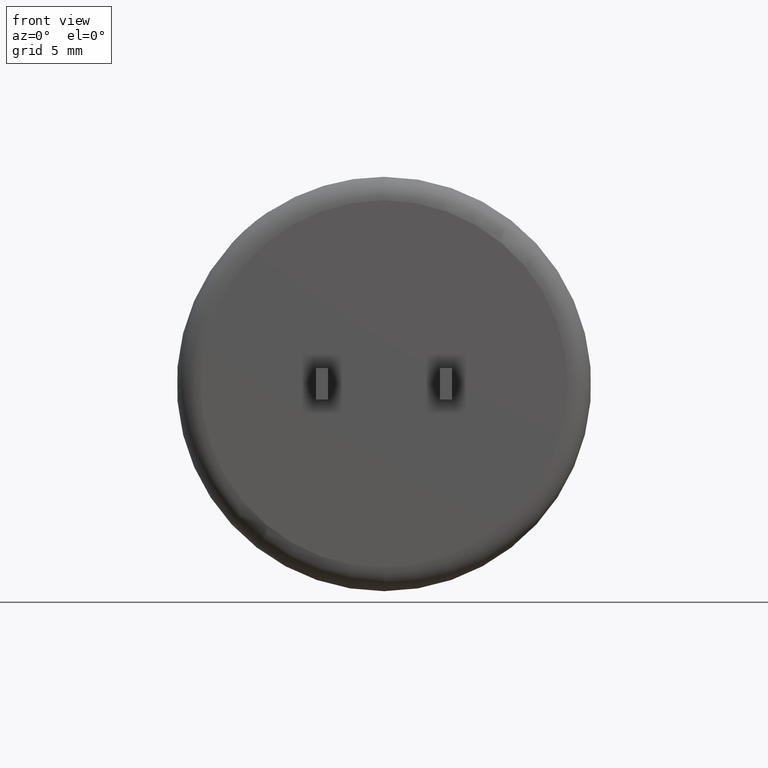
[diagram: clean part render]
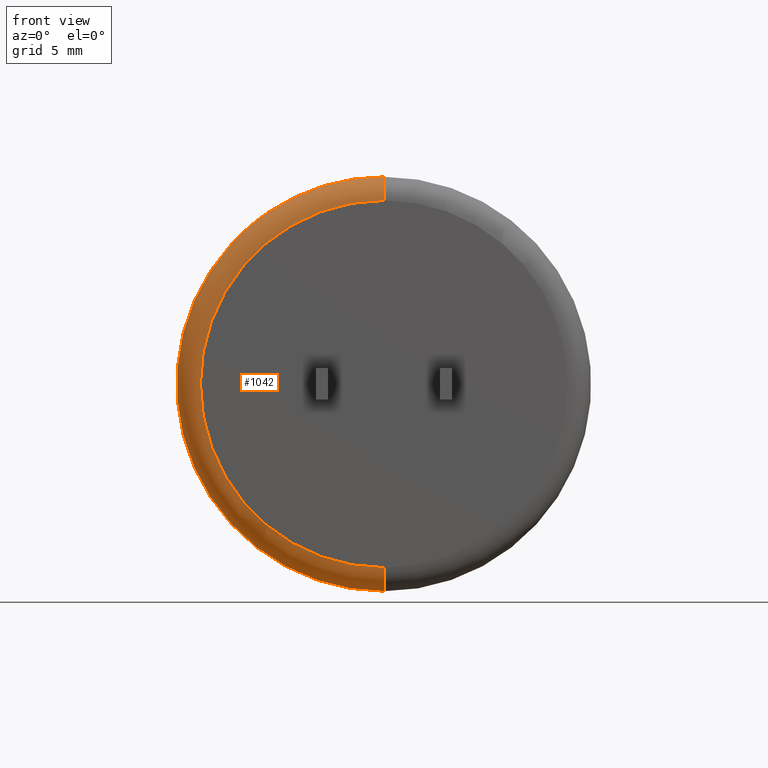
[diagram: same view with one face highlighted and labeled with its STEP entity id]
A machine part, front view. The second image highlights one B-rep face of the part: STEP entity #1042.
In plain terms, the highlighted toroidal blend (fillet) surface has major radius 7.5325 mm and minor (blend) radius 0.9675 mm.
Its self-contained STEP definition (entity closure, byte-faithful):
#48 = CARTESIAN_POINT ( 'NONE',  ( 0.0000000000000000000, 0.0000000000000000000, 0.0000000000000000000 ) ) ;
#112 = CARTESIAN_POINT ( 'NONE',  ( 9.224652014577440100E-016, 0.9674999999999995800, -7.532500000000000600 ) ) ;
#113 = ORIENTED_EDGE ( 'NONE', *, *, #2578, .F. ) ;
#175 = CARTESIAN_POINT ( 'NONE',  ( 0.0000000000000000000, 0.9674999999999995800, 0.0000000000000000000 ) ) ;
#184 = EDGE_CURVE ( 'NONE', #2201, #2674, #423, .T. ) ;
#210 = DIRECTION ( 'NONE',  ( 0.0000000000000000000, 0.0000000000000000000, 1.000000000000000000 ) ) ;
#244 = AXIS2_PLACEMENT_3D ( 'NONE', #2397, #1320, #916 ) ;
#355 = CARTESIAN_POINT ( 'NONE',  ( 0.0000000000000000000, 0.9674999999999995800, 0.0000000000000000000 ) ) ;
#409 = CARTESIAN_POINT ( 'NONE',  ( 0.0000000000000000000, 0.9674999999999995800, -8.500000000000000000 ) ) ;
#423 = CIRCLE ( 'NONE', #1631, 8.500000000000000000 ) ;
#441 = TOROIDAL_SURFACE ( 'NONE', #1013, 7.532500000000000600, 0.9675000000000000300 ) ;
#569 = ORIENTED_EDGE ( 'NONE', *, *, #2249, .T. ) ;
#590 = CIRCLE ( 'NONE', #244, 8.500000000000000000 ) ;
#634 = EDGE_CURVE ( 'NONE', #1253, #1154, #1752, .T. ) ;
#737 = EDGE_LOOP ( 'NONE', ( #113, #1840, #569, #2597, #2734, #2432 ) ) ;
#746 = EDGE_CURVE ( 'NONE', #2674, #1638, #590, .T. ) ;
#779 = VERTEX_POINT ( 'NONE', #2600 ) ;
#915 = CIRCLE ( 'NONE', #2141, 0.9674999999999995800 ) ;
#916 = DIRECTION ( 'NONE',  ( 0.0000000000000000000, 0.0000000000000000000, 1.000000000000000000 ) ) ;
#917 = CIRCLE ( 'NONE', #1662, 8.500000000000000000 ) ;
#1013 = AXIS2_PLACEMENT_3D ( 'NONE', #175, #1847, #1218 ) ;
#1035 = CIRCLE ( 'NONE', #1964, 0.9674999999999995800 ) ;
#1042 = ADVANCED_FACE ( 'NONE', ( #1704 ), #441, .T. ) ;
#1134 = DIRECTION ( 'NONE',  ( -0.0000000000000000000, -1.000000000000000000, -0.0000000000000000000 ) ) ;
#1154 = VERTEX_POINT ( 'NONE', #1915 ) ;
#1165 = DIRECTION ( 'NONE',  ( 0.0000000000000000000, 0.0000000000000000000, 1.000000000000000000 ) ) ;
#1218 = DIRECTION ( 'NONE',  ( 0.0000000000000000000, 0.0000000000000000000, 1.000000000000000000 ) ) ;
#1253 = VERTEX_POINT ( 'NONE', #1499 ) ;
#1320 = DIRECTION ( 'NONE',  ( 0.0000000000000000000, 1.000000000000000000, 0.0000000000000000000 ) ) ;
#1465 = DIRECTION ( 'NONE',  ( -1.000000000000000000, 0.0000000000000000000, 0.0000000000000000000 ) ) ;
#1499 = CARTESIAN_POINT ( 'NONE',  ( 0.0000000000000000000, 0.0000000000000000000, 7.532500000000000600 ) ) ;
#1584 = DIRECTION ( 'NONE',  ( 1.000000000000000000, -0.0000000000000000000, 1.224646799147353200E-016 ) ) ;
#1593 = DIRECTION ( 'NONE',  ( 1.224646799147353700E-016, 0.0000000000000000000, -1.000000000000000000 ) ) ;
#1631 = AXIS2_PLACEMENT_3D ( 'NONE', #2448, #1810, #1165 ) ;
#1638 = VERTEX_POINT ( 'NONE', #2064 ) ;
#1662 = AXIS2_PLACEMENT_3D ( 'NONE', #355, #2730, #2088 ) ;
#1704 = FACE_OUTER_BOUND ( 'NONE', #737, .T. ) ;
#1752 = CIRCLE ( 'NONE', #2351, 7.532500000000000600 ) ;
#1795 = DIRECTION ( 'NONE',  ( 0.0000000000000000000, 0.0000000000000000000, 1.000000000000000000 ) ) ;
#1810 = DIRECTION ( 'NONE',  ( 0.0000000000000000000, 1.000000000000000000, 0.0000000000000000000 ) ) ;
#1840 = ORIENTED_EDGE ( 'NONE', *, *, #634, .F. ) ;
#1847 = DIRECTION ( 'NONE',  ( 0.0000000000000000000, 1.000000000000000000, 0.0000000000000000000 ) ) ;
#1915 = CARTESIAN_POINT ( 'NONE',  ( 9.817074903664970800E-016, 0.0000000000000000000, -7.532500000000000600 ) ) ;
#1964 = AXIS2_PLACEMENT_3D ( 'NONE', #112, #1584, #1593 ) ;
#2064 = CARTESIAN_POINT ( 'NONE',  ( -4.743600123693313200, 0.9674999999999995800, 7.053244492182076700 ) ) ;
#2088 = DIRECTION ( 'NONE',  ( 0.0000000000000000000, 0.0000000000000000000, 1.000000000000000000 ) ) ;
#2141 = AXIS2_PLACEMENT_3D ( 'NONE', #2550, #1465, #210 ) ;
#2201 = VERTEX_POINT ( 'NONE', #409 ) ;
#2249 = EDGE_CURVE ( 'NONE', #1253, #779, #915, .T. ) ;
#2351 = AXIS2_PLACEMENT_3D ( 'NONE', #48, #1134, #1795 ) ;
#2397 = CARTESIAN_POINT ( 'NONE',  ( 0.0000000000000000000, 0.9674999999999995800, 0.0000000000000000000 ) ) ;
#2432 = ORIENTED_EDGE ( 'NONE', *, *, #184, .F. ) ;
#2448 = CARTESIAN_POINT ( 'NONE',  ( 0.0000000000000000000, 0.9674999999999995800, 0.0000000000000000000 ) ) ;
#2508 = CARTESIAN_POINT ( 'NONE',  ( -6.257209992416758100, 0.9674999999999995800, 5.753027299674484700 ) ) ;
#2550 = CARTESIAN_POINT ( 'NONE',  ( 0.0000000000000000000, 0.9674999999999995800, 7.532500000000000600 ) ) ;
#2578 = EDGE_CURVE ( 'NONE', #1154, #2201, #1035, .T. ) ;
#2597 = ORIENTED_EDGE ( 'NONE', *, *, #2670, .F. ) ;
#2600 = CARTESIAN_POINT ( 'NONE',  ( 1.040949779275250100E-015, 0.9674999999999995800, 8.500000000000000000 ) ) ;
#2670 = EDGE_CURVE ( 'NONE', #1638, #779, #917, .T. ) ;
#2674 = VERTEX_POINT ( 'NONE', #2508 ) ;
#2730 = DIRECTION ( 'NONE',  ( 0.0000000000000000000, 1.000000000000000000, 0.0000000000000000000 ) ) ;
#2734 = ORIENTED_EDGE ( 'NONE', *, *, #746, .F. ) ;